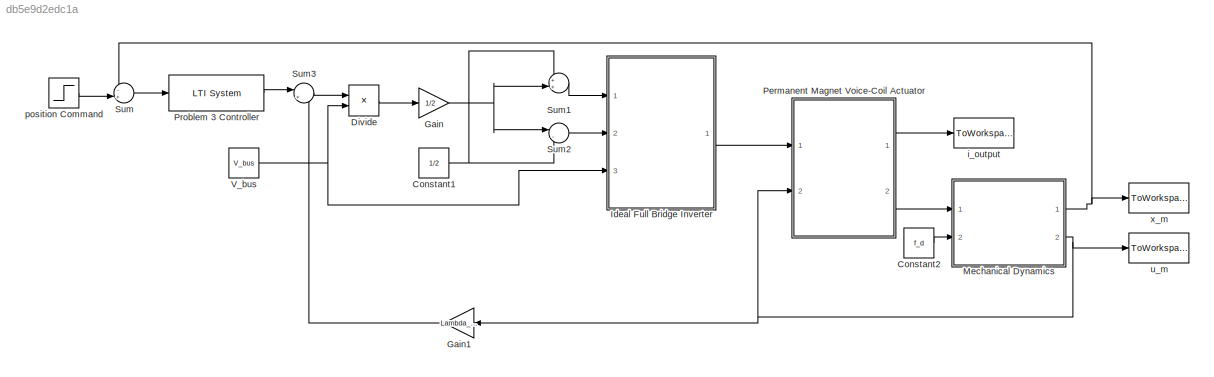
MODEL slx_db5e9d2edc1a
KIND model
CONFIG AbsTol = auto
CONFIG FixedStep = auto
CONFIG MaxStep = auto
CONFIG MinStep = auto
CONFIG RelTol = 1e-3
CONFIG SampleTimeConstraint = Unconstrained
CONFIG Solver = VariableStepAuto
CONFIG SolverMode = Auto
CONFIG SolverName = VariableStepAuto
CONFIG StartTime = 0
CONFIG StopTime = 5
BLOCK [Constant] Constant1
  Value = 1/2
BLOCK [Constant] Constant2
  Value = f_d
BLOCK [Product] Divide
  InputSameDT = off
  Inputs = */
  OutDataTypeStr = Inherit: Inherit via internal rule
  Ports = [2, 1]
  RndMeth = Floor
  SaturateOnIntegerOverflow = off
BLOCK [Gain] Gain
  Gain = 1/2
  OutDataTypeStr = Inherit: Inherit via internal rule
  ParamDataTypeStr = Inherit: Inherit via internal rule
  SaturateOnIntegerOverflow = off
BLOCK [Gain] Gain1
  Gain = Lambda_pm0oell
  OutDataTypeStr = Inherit: Inherit via internal rule
  ParamDataTypeStr = Inherit: Inherit via internal rule
  SaturateOnIntegerOverflow = off
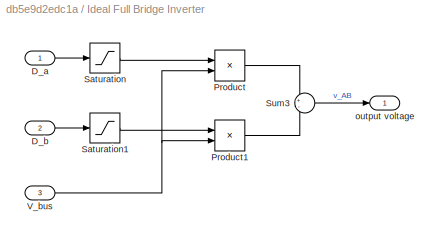
BLOCK [SubSystem] Ideal Full Bridge Inverter 
  Ports = [3, 1]
  RequestExecContextInheritance = off
  Variant = off
BLOCK [Inport] Ideal Full Bridge Inverter /D_a
  IconDisplay = Port number
BLOCK [Inport] Ideal Full Bridge Inverter /D_b
  IconDisplay = Port number
  Port = 2
BLOCK [Product] Ideal Full Bridge Inverter /Product
  InputSameDT = off
  OutDataTypeStr = Inherit: Inherit via internal rule
  Ports = [2, 1]
  RndMeth = Floor
  SaturateOnIntegerOverflow = off
BLOCK [Product] Ideal Full Bridge Inverter /Product1
  InputSameDT = off
  OutDataTypeStr = Inherit: Inherit via internal rule
  Ports = [2, 1]
  RndMeth = Floor
  SaturateOnIntegerOverflow = off
BLOCK [Saturate] Ideal Full Bridge Inverter /Saturation
  InputPortMap = u0
  LowerLimit = 0
  Ports = [1, 1]
  UpperLimit = 1
BLOCK [Saturate] Ideal Full Bridge Inverter /Saturation1
  InputPortMap = u0
  LowerLimit = 0
  Ports = [1, 1]
  UpperLimit = 1
BLOCK [Sum] Ideal Full Bridge Inverter /Sum3
  IconShape = round
  InputSameDT = off
  Inputs = +-
  OutDataTypeStr = Inherit: Inherit via internal rule
  Ports = [2, 1]
BLOCK [Inport] Ideal Full Bridge Inverter /V_bus
  IconDisplay = Port number
  Port = 3
BLOCK [Outport] Ideal Full Bridge Inverter /output voltage
  IconDisplay = Port number
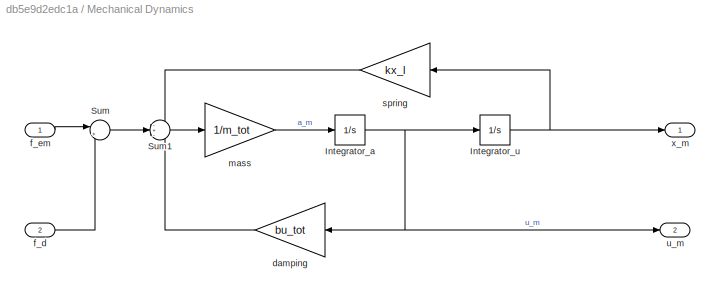
BLOCK [SubSystem] Mechanical Dynamics
  Ports = [2, 2]
  RequestExecContextInheritance = off
  Variant = off
BLOCK [Integrator] Mechanical Dynamics/Integrator_a
  Ports = [1, 1]
BLOCK [Integrator] Mechanical Dynamics/Integrator_u
  Ports = [1, 1]
BLOCK [Sum] Mechanical Dynamics/Sum
  IconShape = round
  InputSameDT = off
  Inputs = |+-
  OutDataTypeStr = Inherit: Inherit via internal rule
  Ports = [2, 1]
  SaturateOnIntegerOverflow = off
BLOCK [Sum] Mechanical Dynamics/Sum1
  IconShape = round
  InputSameDT = off
  Inputs = -+-
  OutDataTypeStr = Inherit: Inherit via internal rule
  Ports = [3, 1]
  SaturateOnIntegerOverflow = off
BLOCK [Gain] Mechanical Dynamics/damping
  Gain = bu_tot
  OutDataTypeStr = Inherit: Inherit via internal rule
  ParamDataTypeStr = Inherit: Inherit via internal rule
  SaturateOnIntegerOverflow = off
BLOCK [Inport] Mechanical Dynamics/f_d
  IconDisplay = Port number
  Port = 2
BLOCK [Inport] Mechanical Dynamics/f_em
  IconDisplay = Port number
BLOCK [Gain] Mechanical Dynamics/mass
  Gain = 1/m_tot
  OutDataTypeStr = Inherit: Inherit via internal rule
  ParamDataTypeStr = Inherit: Inherit via internal rule
  SaturateOnIntegerOverflow = off
BLOCK [Gain] Mechanical Dynamics/spring
  Gain = kx_l
  OutDataTypeStr = Inherit: Inherit via internal rule
  ParamDataTypeStr = Inherit: Inherit via internal rule
  SaturateOnIntegerOverflow = off
BLOCK [Outport] Mechanical Dynamics/u_m
  IconDisplay = Port number
  Port = 2
BLOCK [Outport] Mechanical Dynamics/x_m
  IconDisplay = Port number
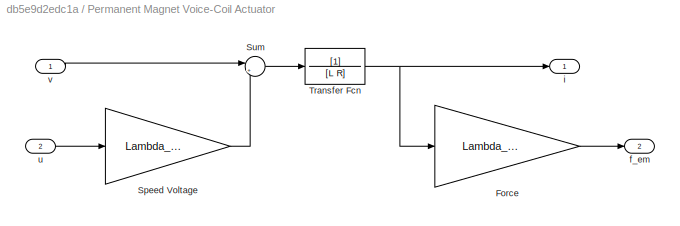
BLOCK [SubSystem] Permanent Magnet Voice-Coil Actuator
  Ports = [2, 2]
  RequestExecContextInheritance = off
  Variant = off
BLOCK [Gain] Permanent Magnet Voice-Coil Actuator/Force
  Gain = Lambda_pm0oell
  OutDataTypeStr = Inherit: Inherit via internal rule
  ParamDataTypeStr = Inherit: Inherit via internal rule
  SaturateOnIntegerOverflow = off
BLOCK [Gain] Permanent Magnet Voice-Coil Actuator/Speed Voltage
  Gain = Lambda_pm0oell
  OutDataTypeStr = Inherit: Inherit via internal rule
  ParamDataTypeStr = Inherit: Inherit via internal rule
  SaturateOnIntegerOverflow = off
BLOCK [Sum] Permanent Magnet Voice-Coil Actuator/Sum
  IconShape = round
  InputSameDT = off
  Inputs = |+-
  OutDataTypeStr = Inherit: Inherit via internal rule
  Ports = [2, 1]
  SaturateOnIntegerOverflow = off
BLOCK [TransferFcn] Permanent Magnet Voice-Coil Actuator/Transfer Fcn
  Denominator = [L R]
BLOCK [Outport] Permanent Magnet Voice-Coil Actuator/f_em
  IconDisplay = Port number
  Port = 2
BLOCK [Outport] Permanent Magnet Voice-Coil Actuator/i
  IconDisplay = Port number
BLOCK [Inport] Permanent Magnet Voice-Coil Actuator/u
  IconDisplay = Port number
  Port = 2
BLOCK [Inport] Permanent Magnet Voice-Coil Actuator/v
  IconDisplay = Port number
BLOCK [Reference] Problem 3 Controller  REF=cstblocks/LTI System
  Ports = [1, 1]
  SourceBlock = cstblocks/LTI System
  SourceType = LTI Block
BLOCK [Sum] Sum
  IconShape = round
  InputSameDT = off
  Inputs = -+|
  OutDataTypeStr = Inherit: Inherit via internal rule
  Ports = [2, 1]
  SaturateOnIntegerOverflow = off
BLOCK [Sum] Sum1
  IconShape = round
  InputSameDT = off
  Inputs = ++|
  OutDataTypeStr = Inherit: Inherit via internal rule
  Ports = [2, 1]
  SaturateOnIntegerOverflow = off
BLOCK [Sum] Sum2
  IconShape = round
  InputSameDT = off
  Inputs = |-+
  OutDataTypeStr = Inherit: Inherit via internal rule
  Ports = [2, 1]
  SaturateOnIntegerOverflow = off
BLOCK [Sum] Sum3
  IconShape = round
  InputSameDT = off
  Inputs = |++
  OutDataTypeStr = Inherit: Inherit via internal rule
  Ports = [2, 1]
  SaturateOnIntegerOverflow = off
BLOCK [Constant] V_bus
  Value = V_bus
BLOCK [ToWorkspace] i_output
  FixptAsFi = on
  MaxDataPoints = inf
  Ports = [1]
  SampleTime = -1
  Save2DSignal = 3-D array (concatenate along third dimension)
  VariableName = i_output
BLOCK [Step] position Command 
  After = .01
  SampleTime = 0
  Time = 0
BLOCK [ToWorkspace] u_m
  FixptAsFi = on
  MaxDataPoints = inf
  Ports = [1]
  SampleTime = -1
  Save2DSignal = 3-D array (concatenate along third dimension)
  VariableName = u_m
BLOCK [ToWorkspace] x_m
  FixptAsFi = on
  MaxDataPoints = inf
  Ports = [1]
  SampleTime = -1
  Save2DSignal = 3-D array (concatenate along third dimension)
  VariableName = x_m
NET Constant1:1 -> Sum1:1, Sum2:2
LINE Constant2:1 -> Mechanical Dynamics:2
LINE Divide:1 -> Gain:1
LINE Gain1:1 -> Sum3:2
NET Gain:1 -> Sum1:2, Sum2:1
LINE Ideal Full Bridge Inverter /D_a:1 -> Ideal Full Bridge Inverter /Saturation:1
LINE Ideal Full Bridge Inverter /D_b:1 -> Ideal Full Bridge Inverter /Saturation1:1
LINE Ideal Full Bridge Inverter /Product1:1 -> Ideal Full Bridge Inverter /Sum3:2
LINE Ideal Full Bridge Inverter /Product:1 -> Ideal Full Bridge Inverter /Sum3:1
LINE Ideal Full Bridge Inverter /Saturation1:1 -> Ideal Full Bridge Inverter /Product1:1
LINE Ideal Full Bridge Inverter /Saturation:1 -> Ideal Full Bridge Inverter /Product:1
LINE Ideal Full Bridge Inverter /Sum3:1 -> Ideal Full Bridge Inverter /output voltage:1
NET Ideal Full Bridge Inverter /V_bus:1 -> Ideal Full Bridge Inverter /Product1:2, Ideal Full Bridge Inverter /Product:2
LINE Ideal Full Bridge Inverter :1 -> Permanent Magnet Voice-Coil Actuator:1
NET Mechanical Dynamics/Integrator_a:1 -> Mechanical Dynamics/Integrator_u:1, Mechanical Dynamics/damping:1, Mechanical Dynamics/u_m:1
NET Mechanical Dynamics/Integrator_u:1 -> Mechanical Dynamics/spring:1, Mechanical Dynamics/x_m:1
LINE Mechanical Dynamics/Sum1:1 -> Mechanical Dynamics/mass:1
LINE Mechanical Dynamics/Sum:1 -> Mechanical Dynamics/Sum1:2
LINE Mechanical Dynamics/damping:1 -> Mechanical Dynamics/Sum1:3
LINE Mechanical Dynamics/f_d:1 -> Mechanical Dynamics/Sum:2
LINE Mechanical Dynamics/f_em:1 -> Mechanical Dynamics/Sum:1
LINE Mechanical Dynamics/mass:1 -> Mechanical Dynamics/Integrator_a:1
LINE Mechanical Dynamics/spring:1 -> Mechanical Dynamics/Sum1:1
NET Mechanical Dynamics:1 -> Sum:1, x_m:1
NET Mechanical Dynamics:2 -> Gain1:1, Permanent Magnet Voice-Coil Actuator:2, u_m:1
LINE Permanent Magnet Voice-Coil Actuator/Force:1 -> Permanent Magnet Voice-Coil Actuator/f_em:1
LINE Permanent Magnet Voice-Coil Actuator/Speed Voltage:1 -> Permanent Magnet Voice-Coil Actuator/Sum:2
LINE Permanent Magnet Voice-Coil Actuator/Sum:1 -> Permanent Magnet Voice-Coil Actuator/Transfer Fcn:1
NET Permanent Magnet Voice-Coil Actuator/Transfer Fcn:1 -> Permanent Magnet Voice-Coil Actuator/Force:1, Permanent Magnet Voice-Coil Actuator/i:1
LINE Permanent Magnet Voice-Coil Actuator/u:1 -> Permanent Magnet Voice-Coil Actuator/Speed Voltage:1
LINE Permanent Magnet Voice-Coil Actuator/v:1 -> Permanent Magnet Voice-Coil Actuator/Sum:1
LINE Permanent Magnet Voice-Coil Actuator:1 -> i_output:1
LINE Permanent Magnet Voice-Coil Actuator:2 -> Mechanical Dynamics:1
LINE Problem 3 Controller:1 -> Sum3:1
LINE Sum1:1 -> Ideal Full Bridge Inverter :1
LINE Sum2:1 -> Ideal Full Bridge Inverter :2
LINE Sum3:1 -> Divide:1
LINE Sum:1 -> Problem 3 Controller:1
NET V_bus:1 -> Divide:2, Ideal Full Bridge Inverter :3
LINE position Command :1 -> Sum:2
note: NET lines group one-source signal fan-out (src -> all destinations, sorted); 1:1 wires keep LINE
